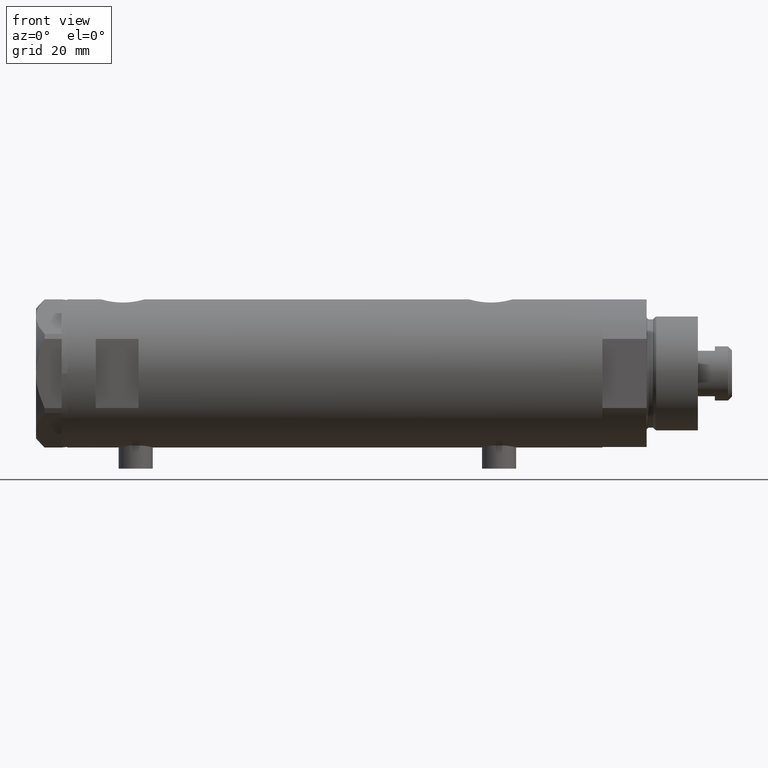
[diagram: clean part render]
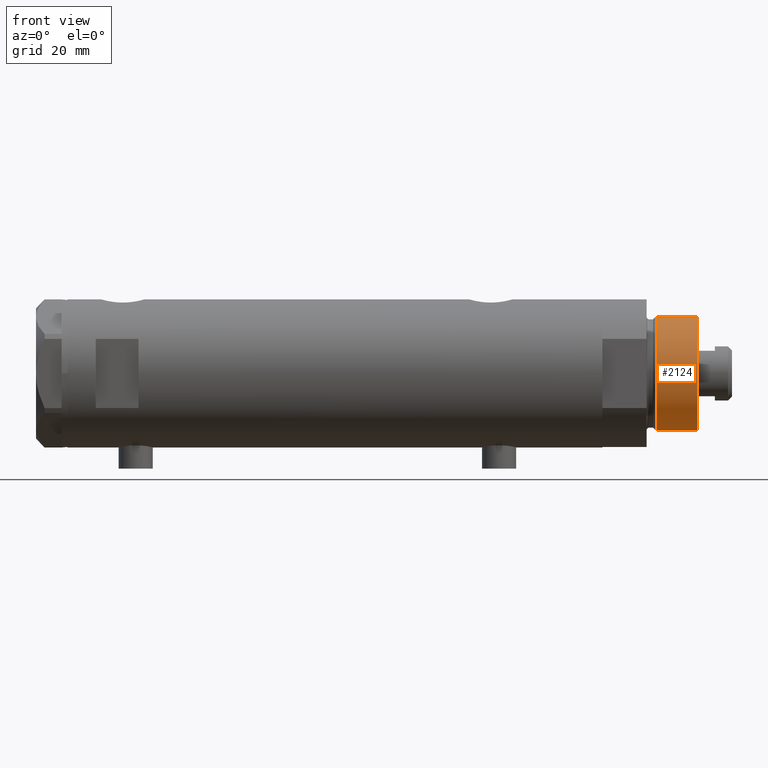
[diagram: same view with one face highlighted and labeled with its STEP entity id]
A machine part, front view. The second image highlights one B-rep face of the part: STEP entity #2124.
In plain terms, the highlighted cylindrical surface (partial cylindrical patch) has radius 20 mm, axis along (-1, -0, 0).
Its self-contained STEP definition (entity closure, byte-faithful):
#20 = EDGE_CURVE ( 'NONE', #2828, #3826, #3669, .T. ) ;
#213 = DIRECTION ( 'NONE',  ( -0.000000000000000000, -0.000000000000000000, -1.000000000000000000 ) ) ;
#294 = CARTESIAN_POINT ( 'NONE',  ( -19.99999999999999645, 0.000000000000000000, 18.87384048104053846 ) ) ;
#315 = DIRECTION ( 'NONE',  ( 0.000000000000000000, 0.000000000000000000, 1.000000000000000000 ) ) ;
#343 = DIRECTION ( 'NONE',  ( -0.000000000000000000, -0.000000000000000000, -1.000000000000000000 ) ) ;
#597 = EDGE_CURVE ( 'NONE', #2828, #2243, #3639, .T. ) ;
#645 = CIRCLE ( 'NONE', #1980, 19.99999999999999645 ) ;
#651 = CARTESIAN_POINT ( 'NONE',  ( 19.99999999999999645, 2.449293598294706119E-15, 33.50000000000000000 ) ) ;
#798 = CARTESIAN_POINT ( 'NONE',  ( 0.000000000000000000, 0.000000000000000000, 18.87384048104053846 ) ) ;
#824 = CARTESIAN_POINT ( 'NONE',  ( -19.99999999999999645, 0.000000000000000000, 33.50000000000000000 ) ) ;
#1040 = FACE_OUTER_BOUND ( 'NONE', #1284, .T. ) ;
#1284 = EDGE_LOOP ( 'NONE', ( #3713, #2830, #4176, #3361 ) ) ;
#1980 = AXIS2_PLACEMENT_3D ( 'NONE', #798, #3603, #5174 ) ;
#2007 = DIRECTION ( 'NONE',  ( 1.000000000000000000, 0.000000000000000000, 0.000000000000000000 ) ) ;
#2124 = ADVANCED_FACE ( 'NONE', ( #1040 ), #4992, .T. ) ;
#2243 = VERTEX_POINT ( 'NONE', #294 ) ;
#2383 = DIRECTION ( 'NONE',  ( -0.000000000000000000, -0.000000000000000000, -1.000000000000000000 ) ) ;
#2828 = VERTEX_POINT ( 'NONE', #824 ) ;
#2830 = ORIENTED_EDGE ( 'NONE', *, *, #20, .F. ) ;
#2881 = VERTEX_POINT ( 'NONE', #3464 ) ;
#2983 = DIRECTION ( 'NONE',  ( -1.000000000000000000, 0.000000000000000000, 0.000000000000000000 ) ) ;
#3340 = EDGE_CURVE ( 'NONE', #3826, #2881, #3432, .T. ) ;
#3359 = VECTOR ( 'NONE', #343, 1000.000000000000000 ) ;
#3361 = ORIENTED_EDGE ( 'NONE', *, *, #3900, .T. ) ;
#3426 = CARTESIAN_POINT ( 'NONE',  ( 19.99999999999999645, 2.449293598294706119E-15, 33.50000000000000000 ) ) ;
#3432 = LINE ( 'NONE', #651, #3359 ) ;
#3464 = CARTESIAN_POINT ( 'NONE',  ( 19.99999999999999645, 2.449293598294706119E-15, 18.87384048104053846 ) ) ;
#3594 = CARTESIAN_POINT ( 'NONE',  ( -19.99999999999999645, 0.000000000000000000, 33.50000000000000000 ) ) ;
#3603 = DIRECTION ( 'NONE',  ( -0.000000000000000000, -0.000000000000000000, 1.000000000000000000 ) ) ;
#3639 = LINE ( 'NONE', #3594, #3929 ) ;
#3669 = CIRCLE ( 'NONE', #4939, 19.99999999999999645 ) ;
#3713 = ORIENTED_EDGE ( 'NONE', *, *, #3340, .F. ) ;
#3826 = VERTEX_POINT ( 'NONE', #3426 ) ;
#3900 = EDGE_CURVE ( 'NONE', #2243, #2881, #645, .T. ) ;
#3929 = VECTOR ( 'NONE', #2383, 1000.000000000000000 ) ;
#4004 = CARTESIAN_POINT ( 'NONE',  ( 0.000000000000000000, 0.000000000000000000, 33.50000000000000000 ) ) ;
#4176 = ORIENTED_EDGE ( 'NONE', *, *, #597, .T. ) ;
#4283 = AXIS2_PLACEMENT_3D ( 'NONE', #5023, #213, #2983 ) ;
#4939 = AXIS2_PLACEMENT_3D ( 'NONE', #4004, #315, #2007 ) ;
#4992 = CYLINDRICAL_SURFACE ( 'NONE', #4283, 19.99999999999999645 ) ;
#5023 = CARTESIAN_POINT ( 'NONE',  ( 0.000000000000000000, 0.000000000000000000, 33.50000000000000000 ) ) ;
#5174 = DIRECTION ( 'NONE',  ( 1.000000000000000000, 0.000000000000000000, 0.000000000000000000 ) ) ;